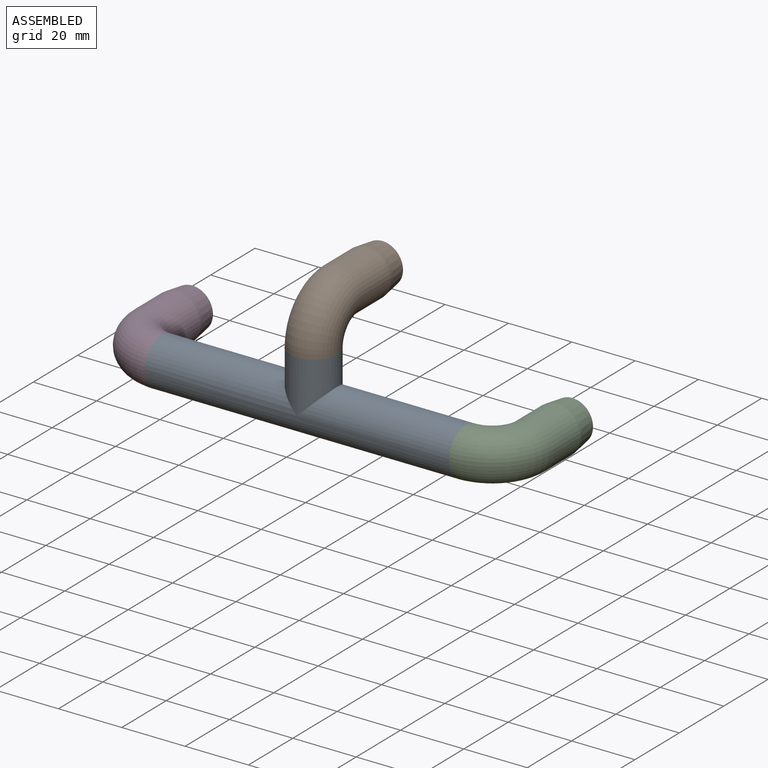
[diagram: assembled view]
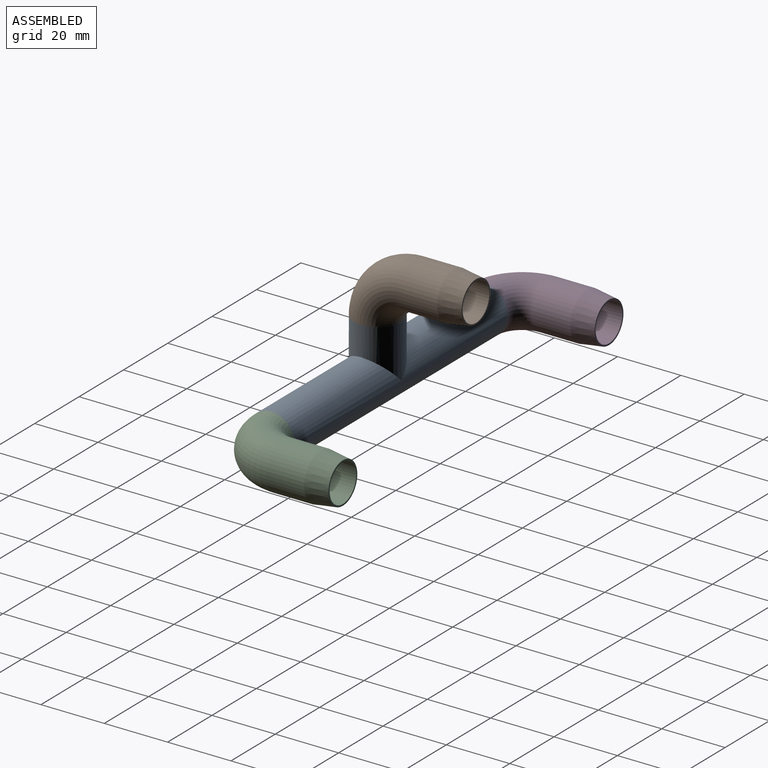
[diagram: assembled view, second angle]
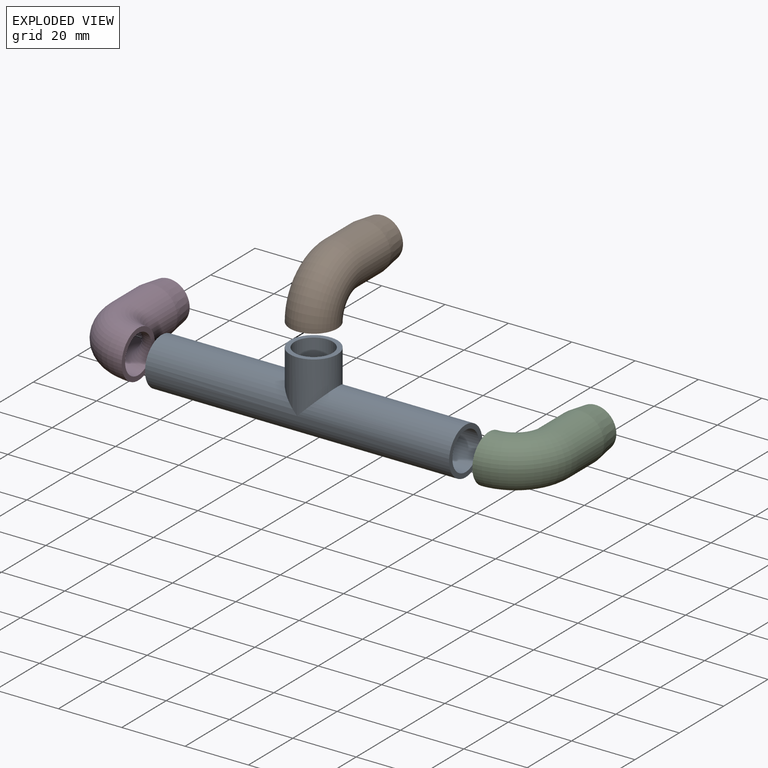
[diagram: exploded view]
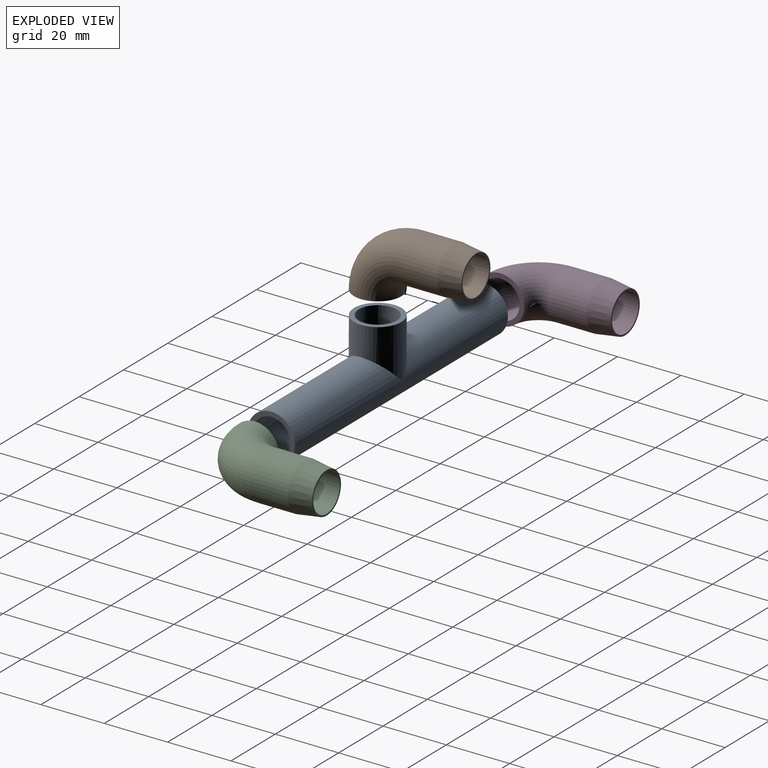
[diagram: exploded view, second angle]
ASSEMBLY  parts=4 mates=3
PART A: 9 faces, bbox 96x15x24.3 mm
  f0: cylinder r=6mm len=96mm, axis (-1,0,0), area 3475mm2, adj f2,f3,f5,f7,f8
  f1: cylinder r=7.5mm len=96mm, axis (-1,0,0), area 4323mm2, adj f2,f3,f4
  f2: plane 15x15mm, normal (1,0,0), area 63.6mm2, adj f0,f1
  f3: plane 15x15mm, normal (-1,0,0), area 63.6mm2, adj f0,f1
  f4: cylinder r=7.5mm len=16.75mm, axis (0,0,1), area 588.5mm2, adj f1,f6
  f5: cylinder r=6mm len=16.75mm, axis (0,0,1), area 502.9mm2, adj f0,f6
  f6: plane 15x15mm, normal (0,0,1), area 63.6mm2, adj f4,f5
  f7: cylinder r=6mm len=0.5mm, axis (0,0,-1), area 0.1mm2, adj f0
  f8: cylinder r=6mm len=0.5mm, axis (0,0,-1), area 0.1mm2, adj f0
PART B: 7 faces, bbox 21.1x15x40.1 mm
  f0: cylinder r=6mm len=19mm, axis (0,0,-1), area 716.3mm2, adj f3,f4
  f1: cylinder r=7.5mm len=15mm, axis (0,0,-1), area 565.5mm2, adj f2,f6
  f2: cone r=6.5mm half-angle=8.1deg, axis (0,0,-1), area 311mm2, adj f1,f3
  f3: plane 13x13mm, normal (0,0,1), area 19.6mm2, adj f0,f2
  f4: torus R=12mm, axis (0,-1,0), area 710.6mm2, adj f0,f5
  f5: plane 15x15mm, normal (1,0,0), area 63.6mm2, adj f4,f6
  f6: torus R=12mm, axis (0,-1,0), area 888.3mm2, adj f1,f5
PART C: same geometry as B
PART D: same geometry as B
PLACE A t=(23.17,10.56,-7.52)mm
PLACE B rot(axis=(-0.58,0.58,0.58),120deg) t=(23.17,34.56,21.23)mm
PLACE C rot(axis=(0,0.71,0.71),180deg) t=(83.17,34.56,-7.52)mm
PLACE D rot(axis=(-1,0,0),90deg) t=(-36.83,34.56,-7.52)mm
MATE revolute B.f5 <-> A.f5  axis (0,0,-1) through (23.17,10.56,9.23)mm
MATE fastened D.f5 <-> A.f1  axis (1,0,0) through (-24.83,10.56,-7.52)mm
MATE fastened C.f5 <-> A.f0  axis (-1,0,0) through (71.17,10.56,-7.52)mm
